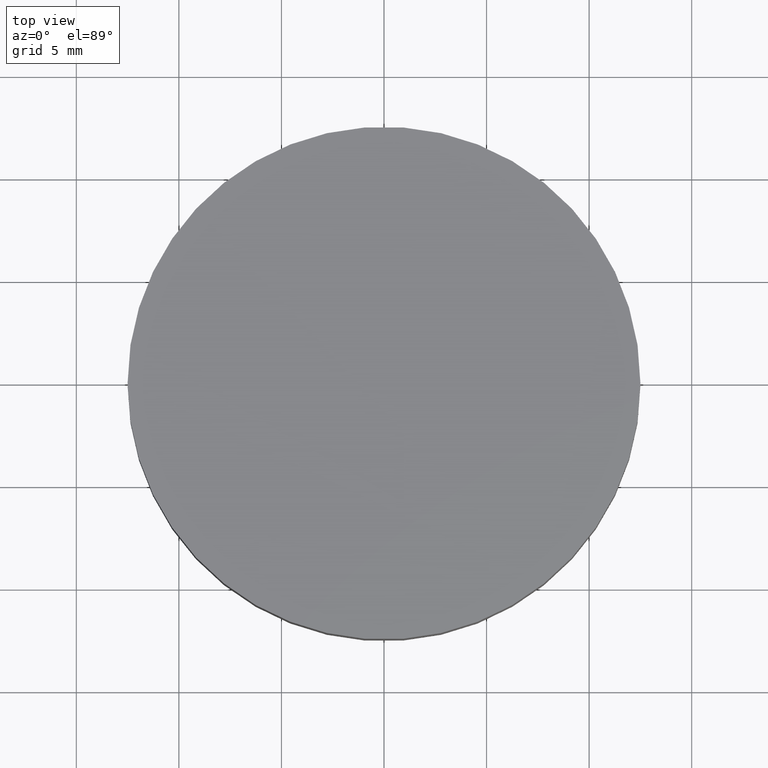
[diagram: clean part render]
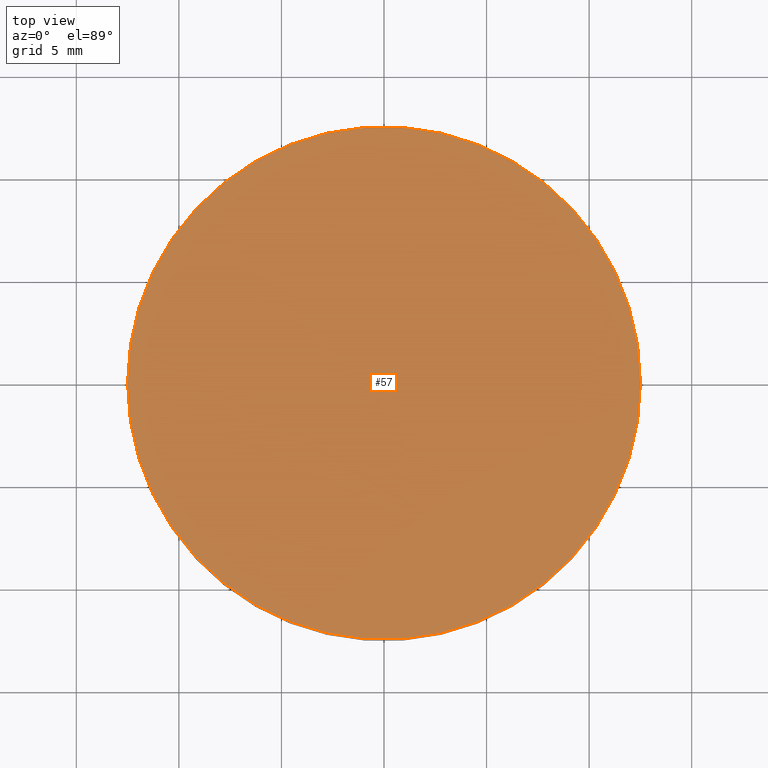
[diagram: same view with one face highlighted and labeled with its STEP entity id]
A machine part, top view. The second image highlights one B-rep face of the part: STEP entity #57.
In plain terms, the highlighted planar face has unit normal (0, 0, 1).
Its self-contained STEP definition (entity closure, byte-faithful):
#4 = AXIS2_PLACEMENT_3D ( 'NONE', #113, #128, #87 ) ;
#26 = DIRECTION ( 'NONE',  ( 1.000000000000000000, 0.0000000000000000000, 0.0000000000000000000 ) ) ;
#42 = AXIS2_PLACEMENT_3D ( 'NONE', #127, #47, #110 ) ;
#47 = DIRECTION ( 'NONE',  ( 0.0000000000000000000, 0.0000000000000000000, 1.000000000000000000 ) ) ;
#50 = CARTESIAN_POINT ( 'NONE',  ( 0.0000000000000000000, 0.0000000000000000000, 5.000000000000000000 ) ) ;
#56 = ORIENTED_EDGE ( 'NONE', *, *, #124, .T. ) ;
#57 = ADVANCED_FACE ( 'NONE', ( #67 ), #99, .T. ) ;
#67 = FACE_OUTER_BOUND ( 'NONE', #70, .T. ) ;
#70 = EDGE_LOOP ( 'NONE', ( #81, #56 ) ) ;
#72 = VERTEX_POINT ( 'NONE', #111 ) ;
#81 = ORIENTED_EDGE ( 'NONE', *, *, #108, .T. ) ;
#85 = CARTESIAN_POINT ( 'NONE',  ( 12.50000000000000000, 1.530808498934191500E-015, 5.000000000000000000 ) ) ;
#86 = AXIS2_PLACEMENT_3D ( 'NONE', #50, #88, #26 ) ;
#87 = DIRECTION ( 'NONE',  ( 1.000000000000000000, 0.0000000000000000000, -0.0000000000000000000 ) ) ;
#88 = DIRECTION ( 'NONE',  ( 0.0000000000000000000, 0.0000000000000000000, 1.000000000000000000 ) ) ;
#91 = CIRCLE ( 'NONE', #86, 12.50000000000000000 ) ;
#99 = PLANE ( 'NONE',  #4 ) ;
#103 = VERTEX_POINT ( 'NONE', #85 ) ;
#108 = EDGE_CURVE ( 'NONE', #72, #103, #125, .T. ) ;
#110 = DIRECTION ( 'NONE',  ( 1.000000000000000000, 0.0000000000000000000, 0.0000000000000000000 ) ) ;
#111 = CARTESIAN_POINT ( 'NONE',  ( -12.50000000000000000, 0.0000000000000000000, 5.000000000000000000 ) ) ;
#113 = CARTESIAN_POINT ( 'NONE',  ( 0.0000000000000000000, 0.0000000000000000000, 5.000000000000000000 ) ) ;
#124 = EDGE_CURVE ( 'NONE', #103, #72, #91, .T. ) ;
#125 = CIRCLE ( 'NONE', #42, 12.50000000000000000 ) ;
#127 = CARTESIAN_POINT ( 'NONE',  ( 0.0000000000000000000, 0.0000000000000000000, 5.000000000000000000 ) ) ;
#128 = DIRECTION ( 'NONE',  ( 0.0000000000000000000, 0.0000000000000000000, 1.000000000000000000 ) ) ;